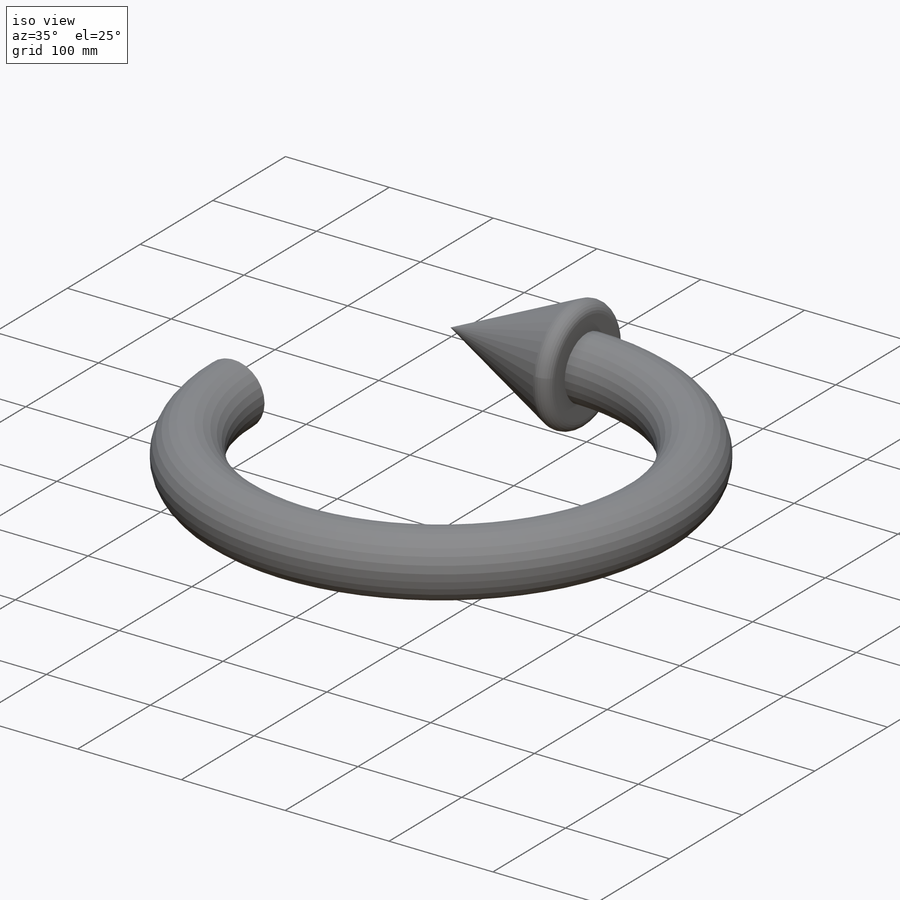
[diagram: iso view]
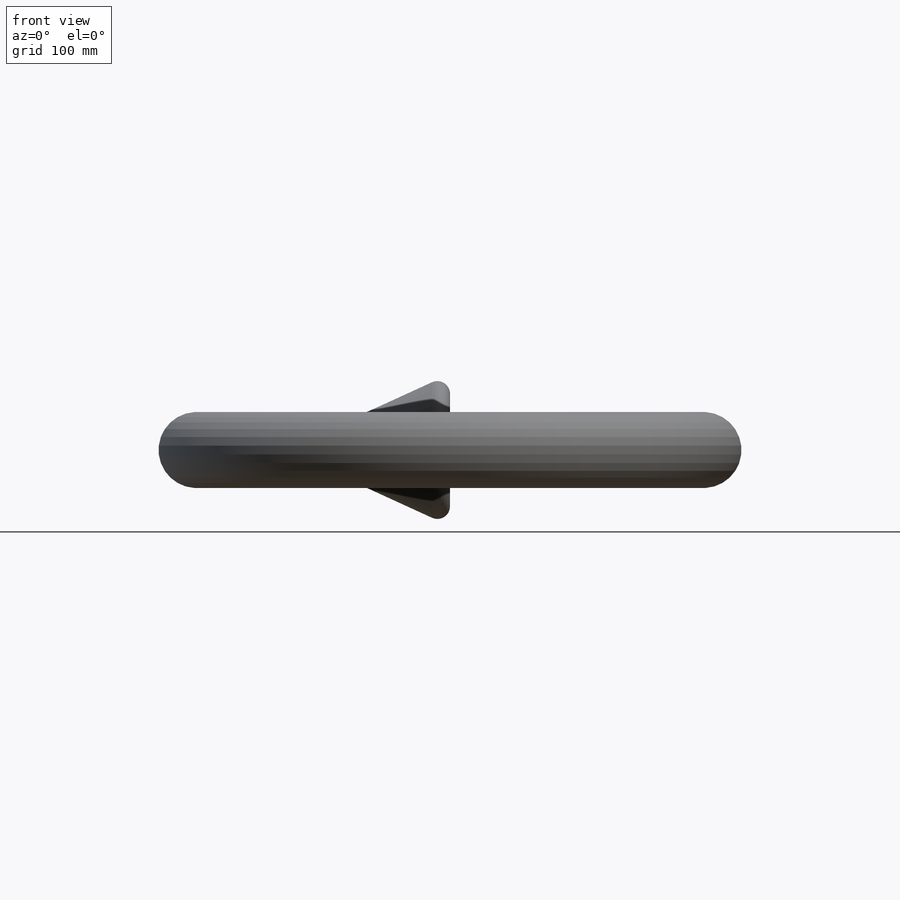
[diagram: front view]
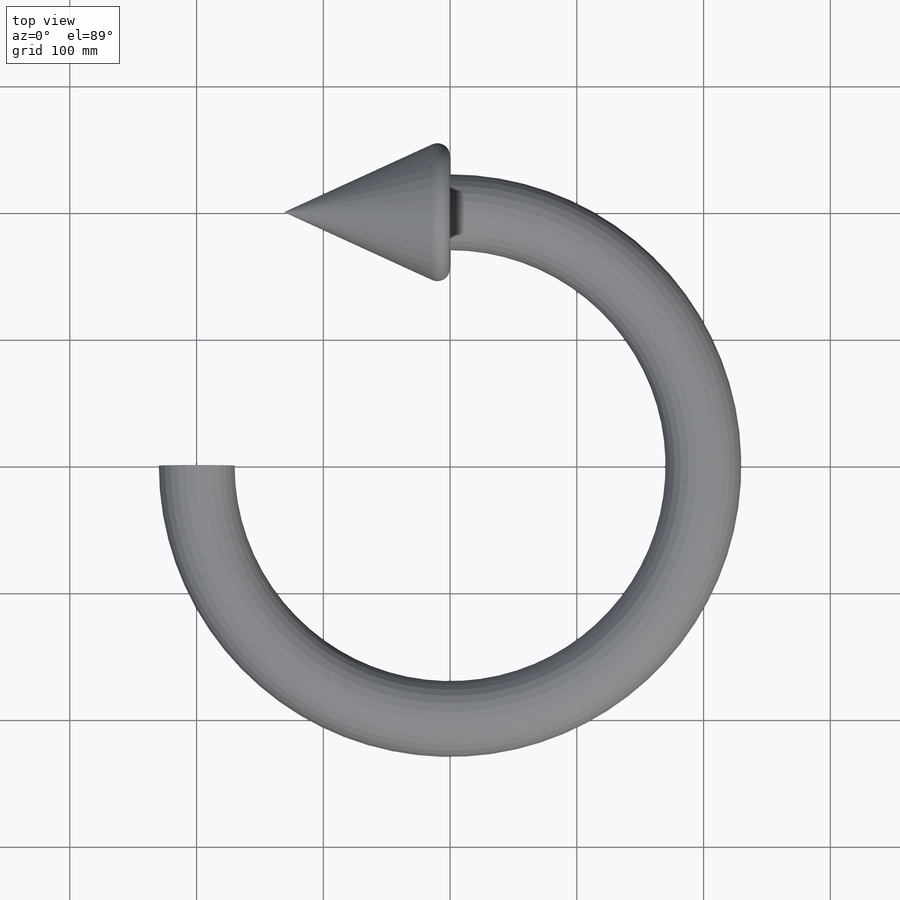
[diagram: top view]
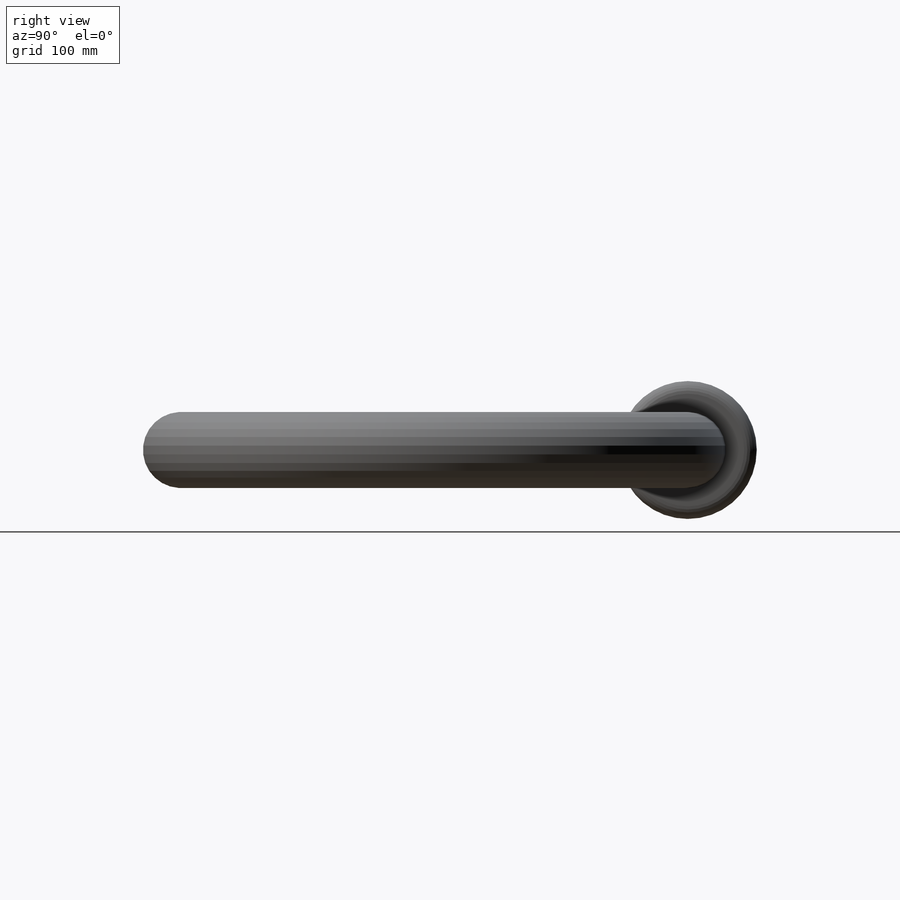
[diagram: right view]
SOLIDWORKS PART (.sldprt)
format: sldprt  version: not decoded by parser v0  size: 185,856 bytes
history: native  units: mm
features: sketch x3, material x1, sweep x1, revolve x1, fillet x1 (+16 scaffold rows collapsed)
feature tree (23):
  scaffold x16  (default folders/planes/origin — collapsed)
  material  "Material <not specified>"
  sketch  "Sketch1"  dims[D1=200.0mm]
  sketch  "Sketch2"  dims[D1=60.0mm]
  sweep  "Sweep1"
  sketch  "Sketch3"  dims[D1=60.0mm D2=~130.969417mm]
  revolve  "Revolve2"  Angle=360deg
  fillet  "Fillet1"  Radius=10mm
decode coverage: 5 of 6 modeling features carry decoded parameters
note: ~ marks probable driven/reference dimensions
note: suppression state not decoded; provenance and decode notes live in map.json
